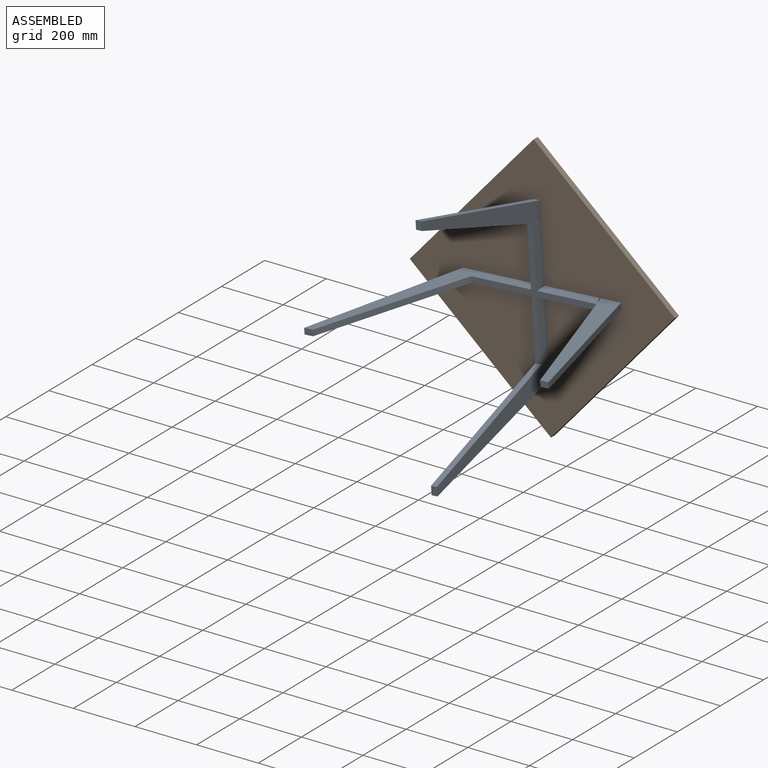
[diagram: assembled view]
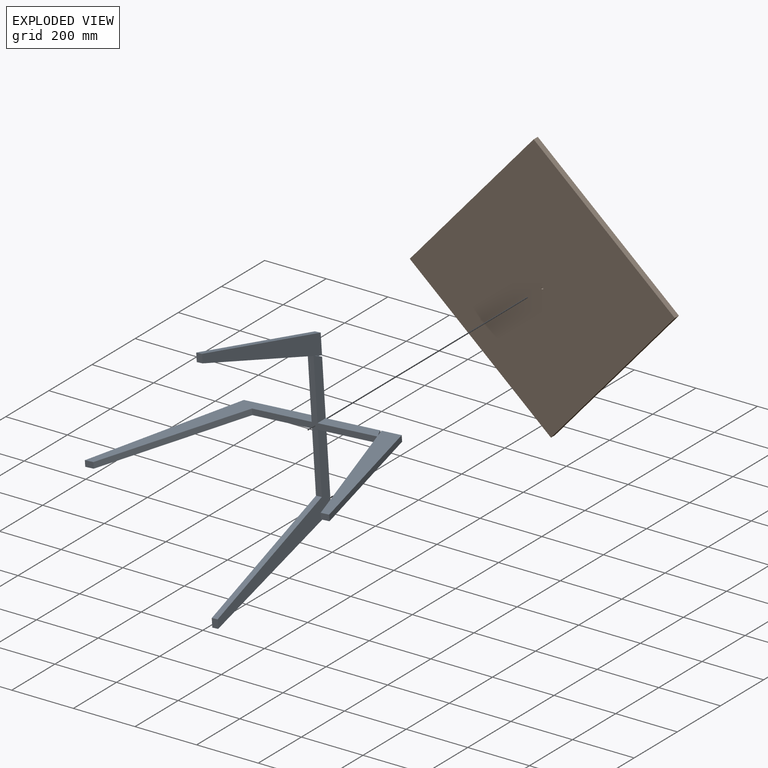
[diagram: exploded view]
GUIDED TOUR — MATED ASSEMBLY WITH SUBASSEMBLIES (Onshape document 58f809ebde07980fea0182a8, AutoMate assembly 58f809ebde07980fea0182a8_abc5318efa38fb2cbd86245c_4e44dbe5dcb8f5f51973194f_default)

This assembly has 7 component occurrences arranged in 2 top-level units: 1 individual components plus 1 subassembly (S0). The tour has two levels: first the top level, where each subassembly is treated as one rigid unit; then each subassembly is toured internally in its own section (nesting deeper than one subassembly level is flattened into its subassembly's section).

Components are labeled P0..P6 across the whole record; subassembly units are labeled S0..S0. A mate is a constraint between two units; its type names the relative motion it leaves free:
  PLANAR — leaves sliding in the plane through the listed point (normal = the listed direction) and rotation about that normal free,
  REVOLUTE — leaves rotation about the listed axis free (a hinge).
Axis/direction vectors are unit vectors and 'through' points are millimeter coordinates, both in the assembly's world frame.

TOP-LEVEL MATES (between units; each subassembly's internal mates are listed in its own section)
  1. REVOLUTE "Revolute 1": S0 <-> P1, axis (0.000, 1.000, 0.000) through (-940.12, -111.90, 1144.78) mm

TOP-LEVEL ASSEMBLY ORDER
  1. P1 — the base component [order verified]
  2. S0 [order verified]
Order-tag legend:
  [order verified] — this step's position reverses a verified removal order: the component was checked to insert without passing through the ones already placed.

Of the 7 component occurrences, 1 carries the full construction recipe — the FeatureScript program that regenerates the part's solid from scratch; the rest are supplied as boundary geometry only. Each toured unit is shown spotlighted twice — assembled, then exploded with a leader line back to its socket (green = recipe-attached component, orange = geometry-only, blue = subassembly unit; the rest desaturated gray).
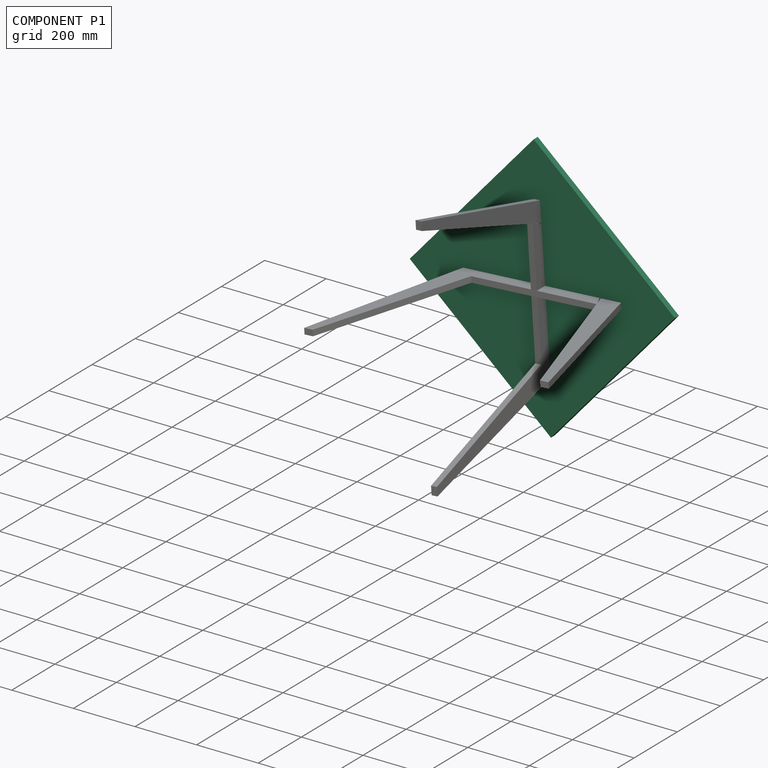
[diagram: component P1 — assembled]
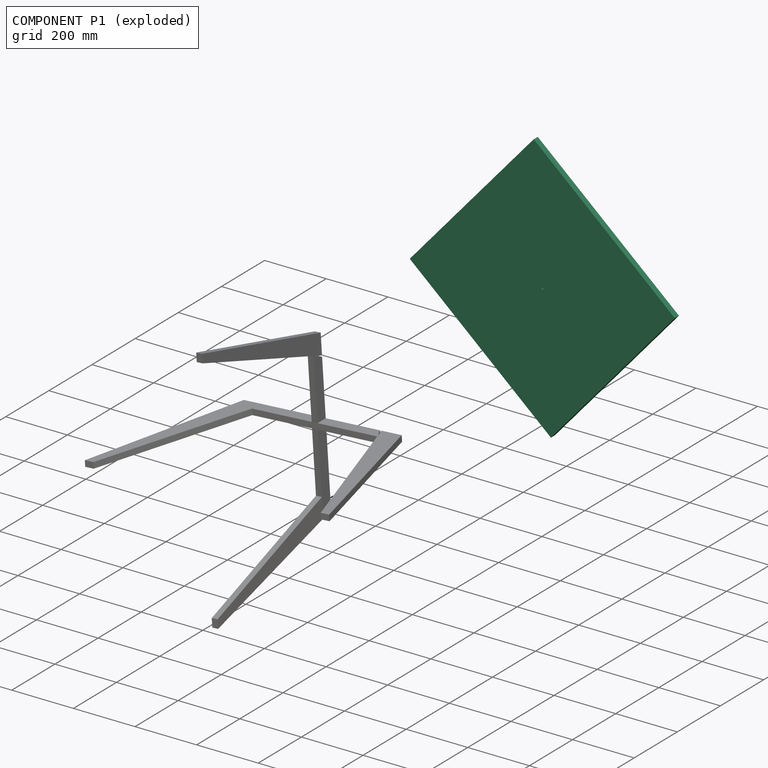
[diagram: component P1 — exploded]
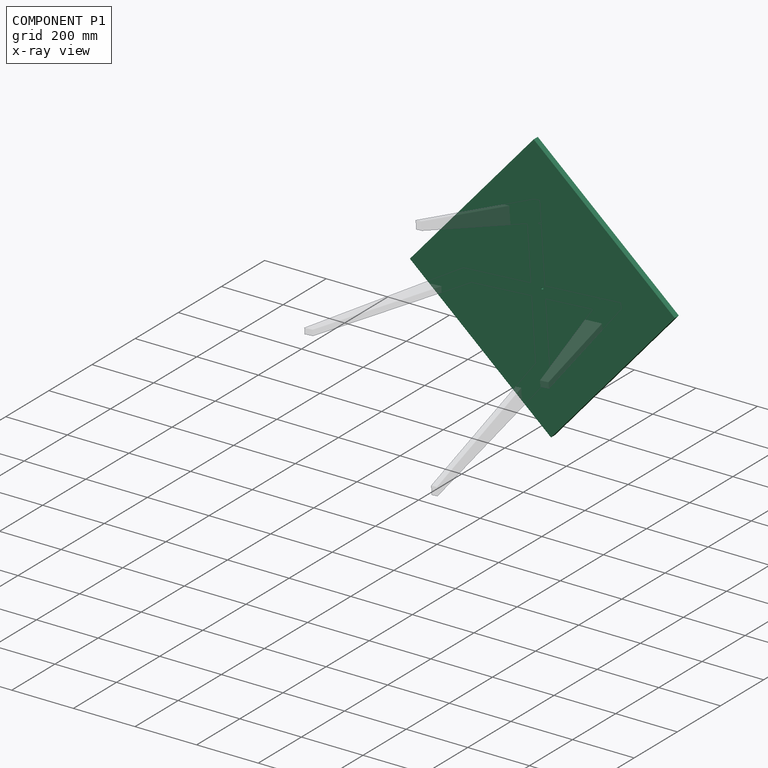
[diagram: component P1 — x-ray view]
COMPONENT P1 — recipe-attached (CADFS 00722363, mesh-verified: the recipe's output STEP matches this component's geometry to below the mesh-comparison resolution (tessellation chordal tolerance ~1.29 mm)).
Held by: REVOLUTE mate "Revolute 1" to P0.
Construction recipe (FeatureScript — the CAD program that rebuilds this solid; sketch coordinates are in the units given by the * unit suffixes, e.g. mm):

FeatureScript 1511;
import(path : "onshape/std/geometry.fs", version : "1511.0");
import(path : "onshape/std/common.fs", version : "1511.0");
const mm = millimeter;
const VERTEX = EntityType.VERTEX;
const EDGE = EntityType.EDGE;
const FACE = EntityType.FACE;
const BODY = EntityType.BODY;
function v(x, y){return vector(x, y);}
function OD(order){return orderDisambiguation(order);}
function OSD(set){return originalSetDisambiguation(set);}
function TD(topology){return topologyDisambiguation(topology);}
function TDD(query){return trueDependencyDisambiguation(query);}
function sQuery(a, b, c) {return sketchEntityQuery(a, b, c);}

annotation { "Feature Type Name" : "Feature", "Feature Type Description" : "" }
export const myFeature = defineFeature(function(context is Context, id is Id, definition is map)
    precondition{}
    {
        {
            var Q0;
            Q0=qCreatedBy(makeId("Front.planeOp"),FACE);
            var sketch = newSketch(context, id + "F0", { "sketchPlane" : qUnion([Q0])});
            skLineSegment(sketch, "E0.bottom", {"start": v(0, 0) * mm, "end": v(-609.6, 0) * mm});
            skLineSegment(sketch, "E0.top", {"start": v(0, 609.6) * mm, "end": v(-609.6, 609.6) * mm});
            skLineSegment(sketch, "E0.left", {"start": v(0, 0) * mm, "end": v(0, 609.6) * mm});
            skLineSegment(sketch, "E0.right", {"start": v(-609.6, 0) * mm, "end": v(-609.6, 609.6) * mm});
            skSolve(sketch);
        }
        {
            var Q0;
            Q0=makeQuery(id+"F0.imprint","IMPRINT",FACE,{"disambiguationData":[TD([[makeQuery(id+"F0.imprint","IMPRINT",EDGE,{"derivedFrom":sQuery(id+"F0.wireOp",EDGE,"E0.bottom")}),-1.0]])]});
            extrude(context, id + "F1", {"entities" : qUnion([Q0]), "depth" : 19.05 * mm, "offsetDistance" : 25.4 * mm});
        }
        {
            var Q0;
            Q0=makeQuery(id+"F1.opExtrude","CAP_FACE",FACE,{"disambiguationData":[OSD([sQuery(id+"F0.wireOp",EDGE,"E0.bottom"),sQuery(id+"F0.wireOp",EDGE,"E0.top"),sQuery(id+"F0.wireOp",EDGE,"E0.left"),sQuery(id+"F0.wireOp",EDGE,"E0.right")])],"isStart":false});
            var sketch = newSketch(context, id + "F2", { "sketchPlane" : qUnion([Q0])});
            skLineSegment(sketch, "E1", {"start": v(-609.6, 304.8) * mm, "end": v(-304.8, 304.8) * mm, "construction": true});
            skLineSegment(sketch, "E2", {"start": v(-304.8, 304.8) * mm, "end": v(-304.8, 609.6) * mm, "construction": true});
            skCircle(sketch, "E3", {"center": v(-304.8, 304.8) * mm, "radius": 3.17 * mm});
            skSolve(sketch);
        }
        {
            var Q0;
            Q0=qSketchRegion(id+"F2",true);
            extrude(context, id + "F3", {"entities" : qUnion([Q0]), "operationType" : NewBodyOperationType.REMOVE, "oppositeDirection" : true, "depth" : 25.4 * mm, "offsetDistance" : 25.4 * mm});
        }
    });
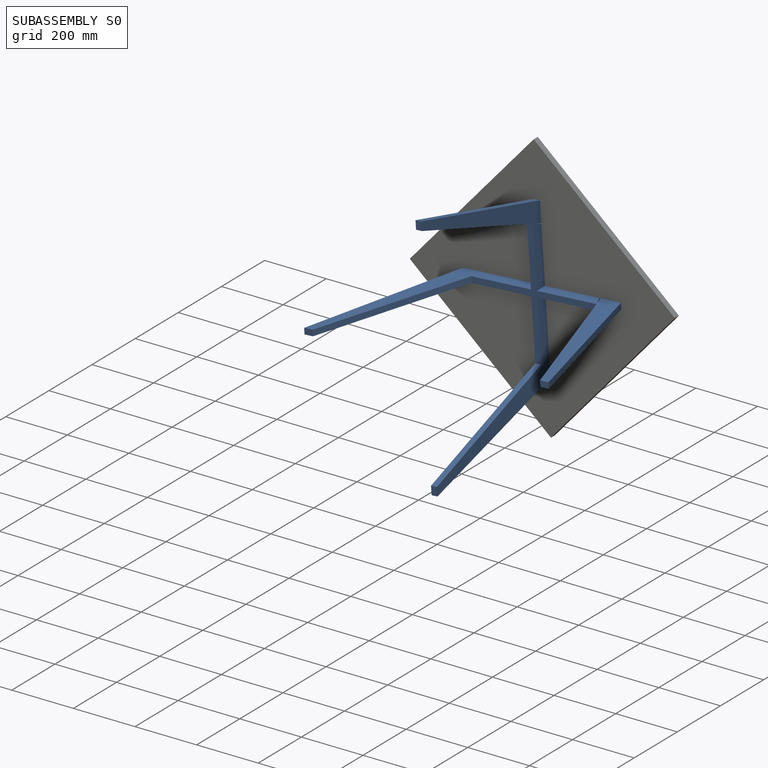
[diagram: subassembly S0 — assembled]
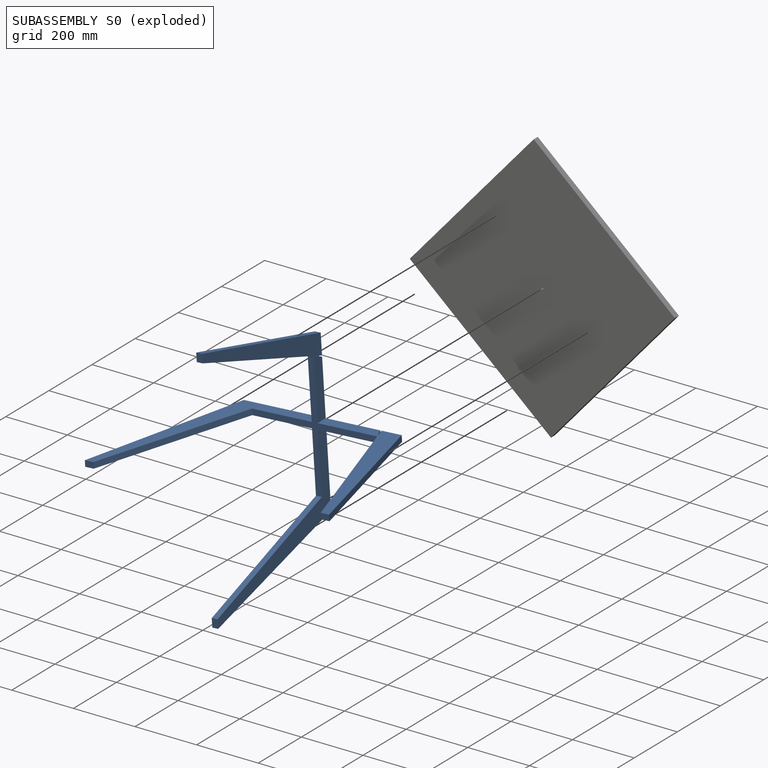
[diagram: subassembly S0 — exploded]
SUBASSEMBLY S0 — 6 components (P0, P2, P3, P4, P5, P6), of which 0 recipe-attached; toured below.
Held by: REVOLUTE mate "Revolute 1" to P1.
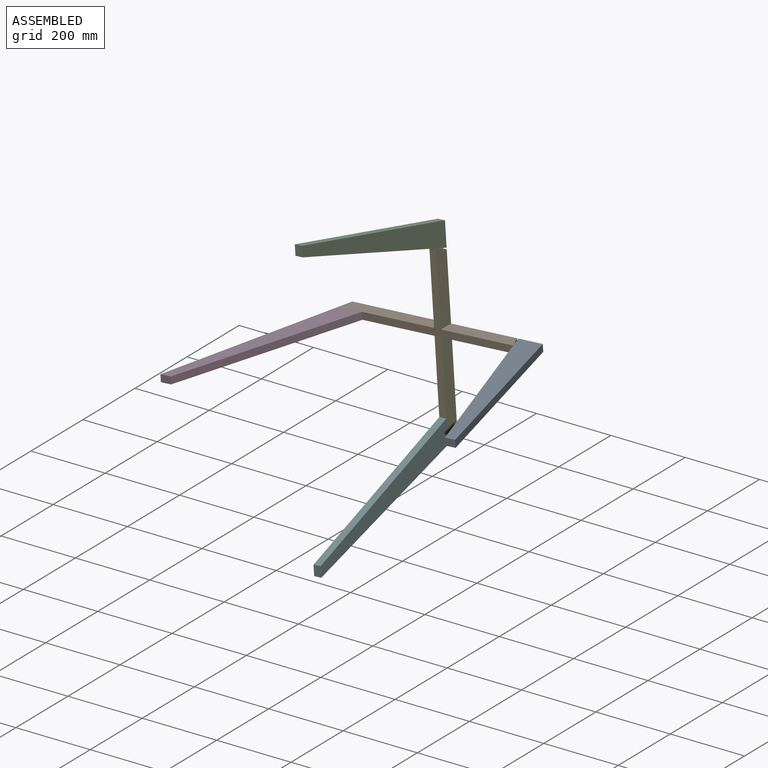
[diagram: subassembly S0 — assembled view]
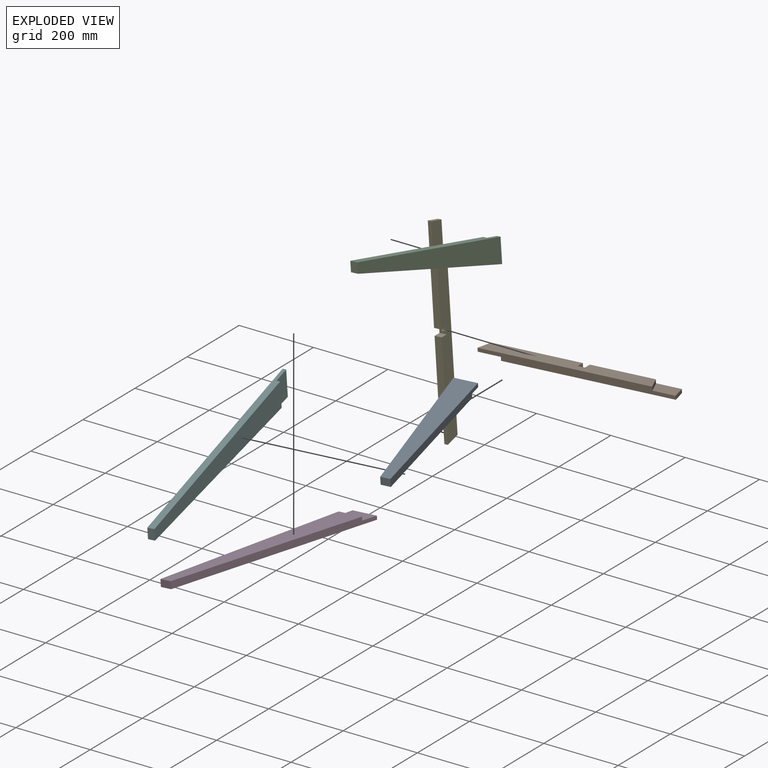
[diagram: subassembly S0 — exploded view]
SUBASSEMBLY S0 TOUR — 6 components, shown here in isolation at its own camera.

INTERNAL MATES
  1. PLANAR "Planar 15": P2 <-> P5, direction (-0.066, 0.000, 0.998) through (-974.33, -131.35, 1152.07) mm
  2. PLANAR "Planar 10": P4 <-> P2, direction (0.000, 1.000, 0.000) through (-1163.22, -111.90, 1125.30) mm
  3. PLANAR "Planar 7": P3 <-> P5, direction (-0.998, 0.000, -0.066) through (-955.22, -130.82, 1373.81) mm
  4. PLANAR "Planar 12": P4 <-> P2, direction (-0.965, 0.253, -0.064) through (-1268.80, -389.46, 1122.93) mm
  5. PLANAR "Planar 8": P3 <-> P5, direction (0.000, 1.000, 0.000) through (-950.10, -111.90, 1368.51) mm
  6. PLANAR "Planar 4": P0 <-> P2, direction (0.000, 1.000, 0.000) through (-717.02, -111.90, 1164.27) mm
  7. PLANAR "Planar 2": P5 <-> P6, direction (0.064, 0.253, -0.965) through (-918.15, -130.95, 883.95) mm
  8. PLANAR "Planar 1": P5 <-> P6, direction (-0.998, 0.000, -0.066) through (-925.08, -130.61, 916.67) mm
  9. PLANAR "Planar 3": P5 <-> P6, direction (0.000, 1.000, 0.000) through (-940.12, -111.90, 1144.78) mm
  10. PLANAR "Planar 9": P5 <-> P3, direction (-0.064, 0.253, 0.965) through (-962.09, -130.95, 1405.62) mm
  11. PLANAR "Planar 6": P0 <-> P2, direction (0.965, 0.253, 0.064) through (-611.44, -389.46, 1166.64) mm
  12. PLANAR "Planar 13": P2 <-> P5, direction (0.000, 1.000, 0.000) through (-940.12, -130.95, 1144.78) mm
  13. PLANAR "Planar 14": P5 <-> P2, direction (0.998, 0.000, 0.066) through (-928.40, -130.94, 1111.82) mm
  14. PLANAR "Planar 5": P0 <-> P2, direction (0.066, 0.000, -0.998) through (-711.09, -130.82, 1159.89) mm
  15. PLANAR "Planar 11": P2 <-> P4, direction (0.066, 0.000, -0.998) through (-1168.23, -130.61, 1129.74) mm
  16. PLANAR "Planar 14": P5 <-> P2, direction (0.998, 0.000, 0.066) through (-928.40, -130.94, 1111.82) mm
  17. PLANAR "Planar 15": P2 <-> P5, direction (-0.066, 0.000, 0.998) through (-974.33, -131.35, 1152.07) mm
  18. PLANAR "Planar 9": P5 <-> P3, direction (-0.064, 0.253, 0.965) through (-962.09, -130.95, 1405.62) mm
  19. PLANAR "Planar 4": P0 <-> P2, direction (0.000, 1.000, 0.000) through (-717.02, -111.90, 1164.27) mm
  20. PLANAR "Planar 3": P5 <-> P6, direction (0.000, 1.000, 0.000) through (-940.12, -111.90, 1144.78) mm
  21. PLANAR "Planar 5": P0 <-> P2, direction (0.066, 0.000, -0.998) through (-711.09, -130.82, 1159.89) mm
  22. PLANAR "Planar 10": P4 <-> P2, direction (0.000, 1.000, 0.000) through (-1163.22, -111.90, 1125.30) mm
  23. PLANAR "Planar 6": P0 <-> P2, direction (0.965, 0.253, 0.064) through (-611.44, -389.46, 1166.64) mm
  24. PLANAR "Planar 11": P2 <-> P4, direction (0.066, 0.000, -0.998) through (-1168.23, -130.61, 1129.74) mm
  25. PLANAR "Planar 2": P5 <-> P6, direction (0.064, 0.253, -0.965) through (-918.15, -130.95, 883.95) mm
  26. PLANAR "Planar 12": P4 <-> P2, direction (-0.965, 0.253, -0.064) through (-1268.80, -389.46, 1122.93) mm
  27. PLANAR "Planar 7": P3 <-> P5, direction (-0.998, 0.000, -0.066) through (-955.22, -130.82, 1373.81) mm
  28. PLANAR "Planar 8": P3 <-> P5, direction (0.000, 1.000, 0.000) through (-950.10, -111.90, 1368.51) mm
  29. PLANAR "Planar 13": P2 <-> P5, direction (0.000, 1.000, 0.000) through (-940.12, -130.95, 1144.78) mm
  30. PLANAR "Planar 1": P5 <-> P6, direction (-0.998, 0.000, -0.066) through (-925.08, -130.61, 916.67) mm

ASSEMBLY ORDER (within the subassembly)
  1. P5 — the base component [order verified]
  2. P3 [order verified]
  3. P0 [order verified]
  4. P2 [order verified]
  5. P6 [order verified]
  6. P4 [order verified]
Order-tag legend:
  [order verified] — this step's position reverses a verified removal order: the component was checked to insert without passing through the ones already placed.
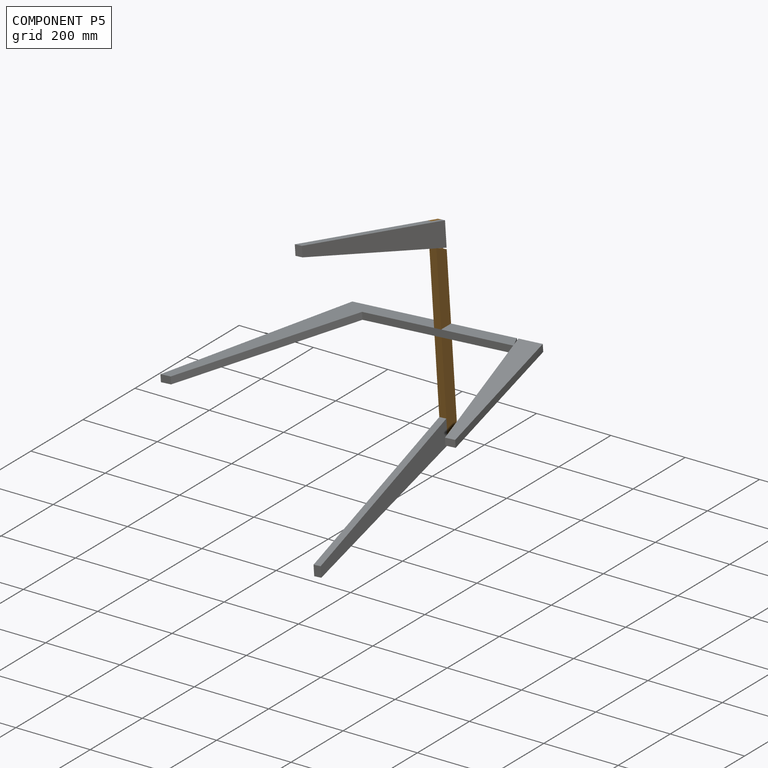
[diagram: component P5 — assembled]
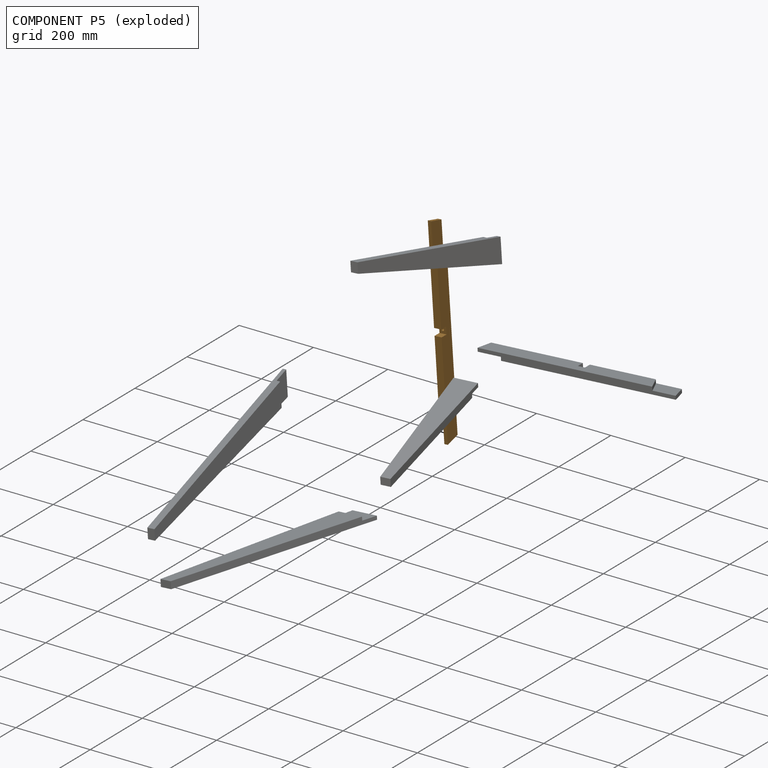
[diagram: component P5 — exploded]
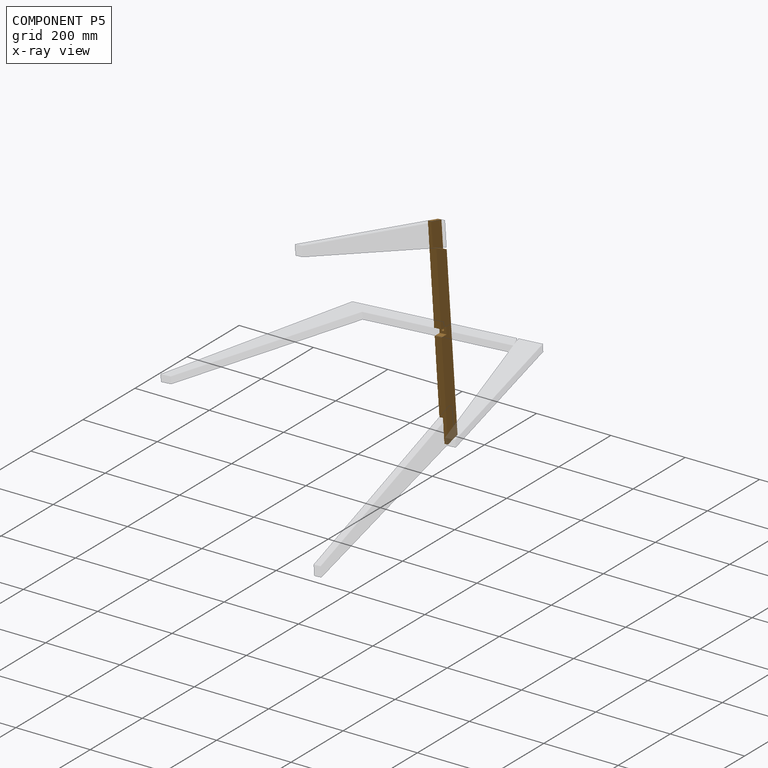
[diagram: component P5 — x-ray view]
COMPONENT P5 — geometry summary (no construction recipe available for this part):
  bounding box: 533.4 x 38.1 x 19.1 mm
  B-rep topology: 1 solid, 15 faces, 80 edges
  volume: 324515 mm^3 (84% of its bounding box)
  symmetry: 2-fold rotationally symmetric about the y axis
Held by: PLANAR mate "Planar 15" to P2; PLANAR mate "Planar 7" to P3; PLANAR mate "Planar 8" to P3; PLANAR mate "Planar 2" to P6; PLANAR mate "Planar 1" to P6; PLANAR mate "Planar 3" to P6; PLANAR mate "Planar 9" to P3; PLANAR mate "Planar 13" to P2; PLANAR mate "Planar 14" to P2; PLANAR mate "Planar 14" to P2; PLANAR mate "Planar 15" to P2; PLANAR mate "Planar 9" to P3; PLANAR mate "Planar 3" to P6; PLANAR mate "Planar 2" to P6; PLANAR mate "Planar 7" to P3; PLANAR mate "Planar 8" to P3; PLANAR mate "Planar 13" to P2; PLANAR mate "Planar 1" to P6.
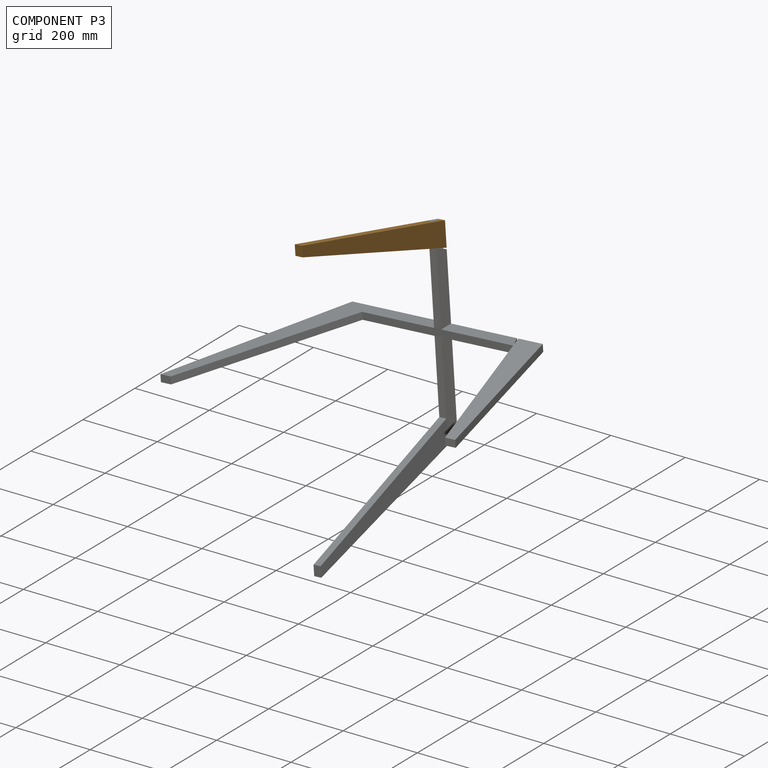
[diagram: component P3 — assembled]
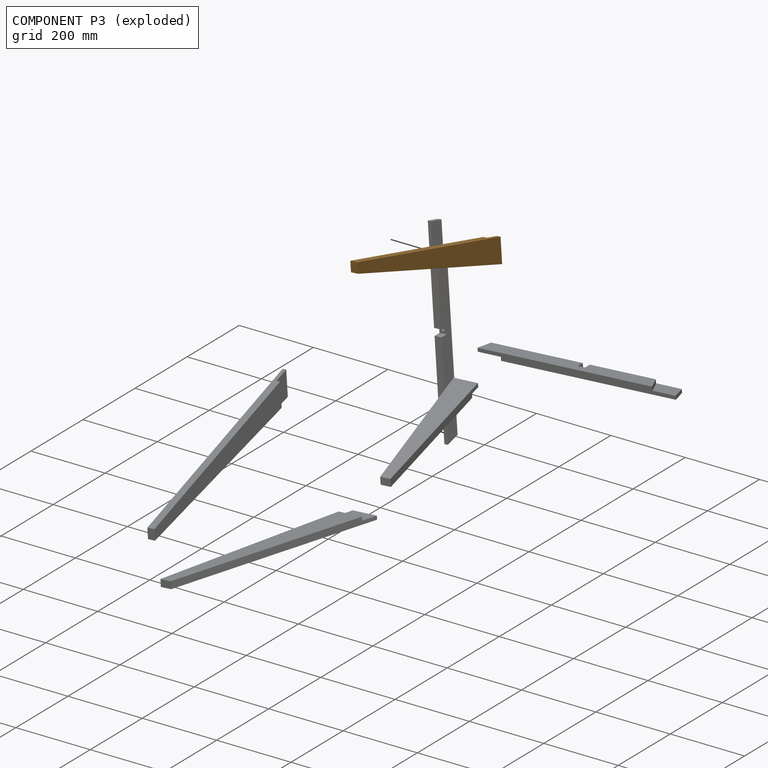
[diagram: component P3 — exploded]
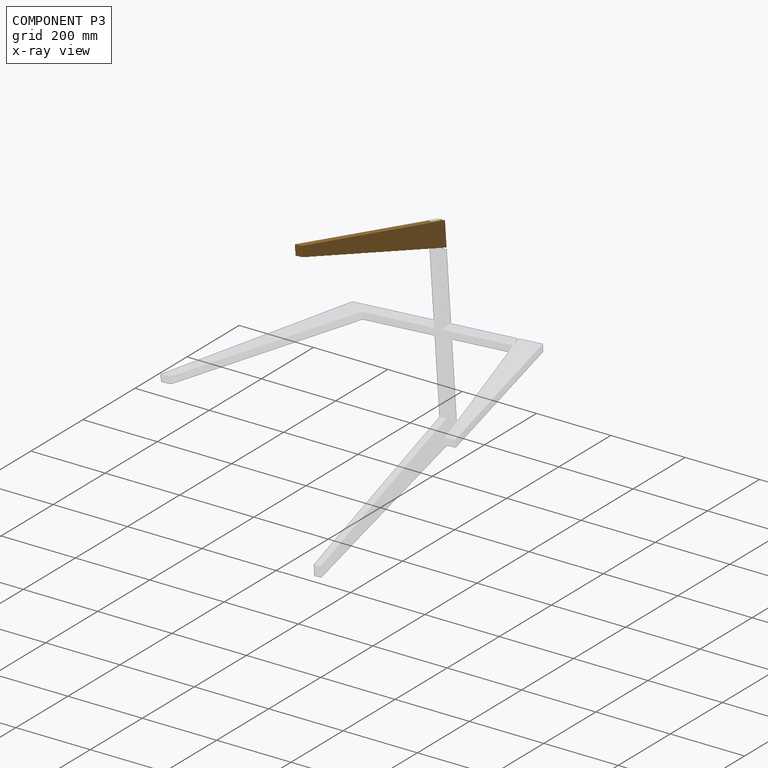
[diagram: component P3 — x-ray view]
COMPONENT P3 — geometry summary (no construction recipe available for this part):
  bounding box: 571.5 x 63.5 x 19.1 mm
  B-rep topology: 1 solid, 8 faces, 36 edges
  volume: 453087 mm^3 (66% of its bounding box)
Held by: PLANAR mate "Planar 7" to P5; PLANAR mate "Planar 8" to P5; PLANAR mate "Planar 9" to P5; PLANAR mate "Planar 9" to P5; PLANAR mate "Planar 7" to P5; PLANAR mate "Planar 8" to P5.
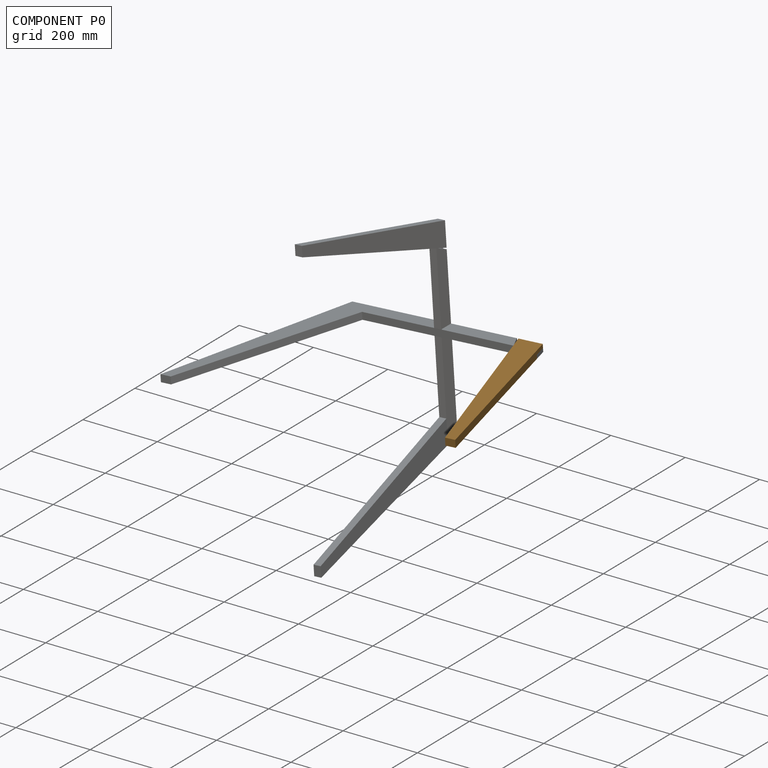
[diagram: component P0 — assembled]
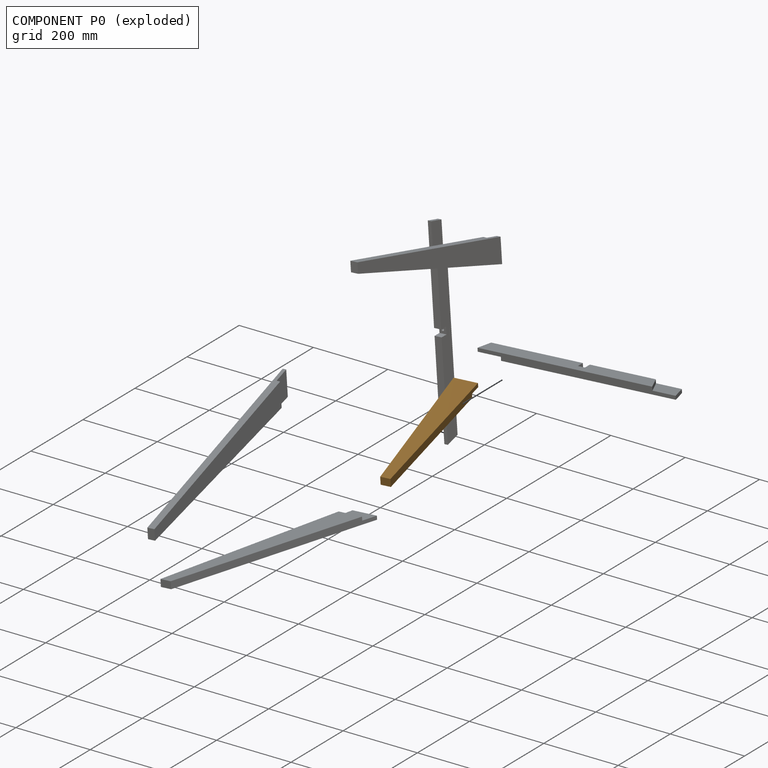
[diagram: component P0 — exploded]
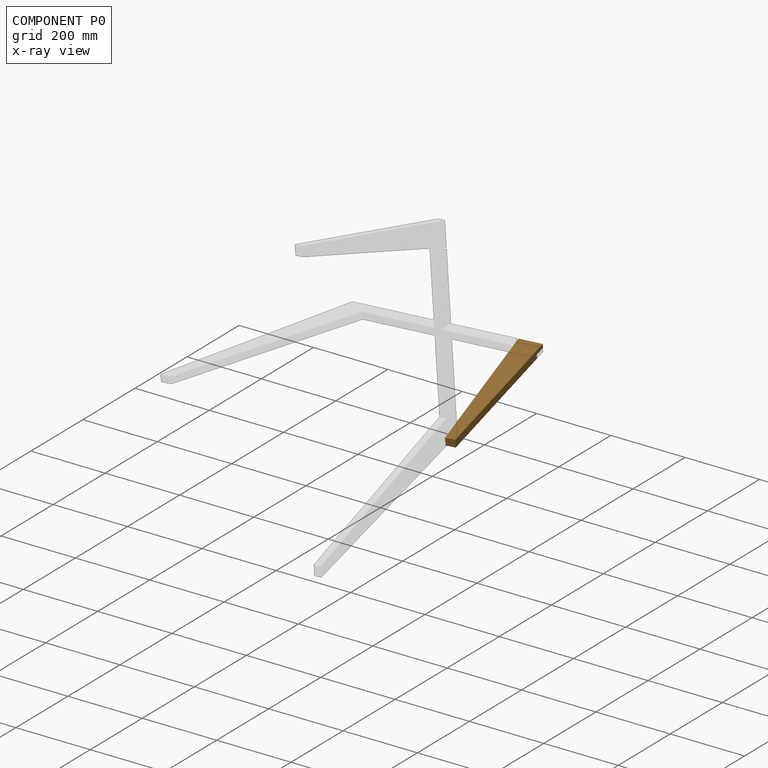
[diagram: component P0 — x-ray view]
COMPONENT P0 — geometry summary (no construction recipe available for this part):
  bounding box: 571.5 x 63.5 x 19.1 mm
  B-rep topology: 1 solid, 8 faces, 36 edges
  volume: 453087 mm^3 (66% of its bounding box)
Held by: PLANAR mate "Planar 4" to P2; PLANAR mate "Planar 6" to P2; PLANAR mate "Planar 5" to P2; PLANAR mate "Planar 4" to P2; PLANAR mate "Planar 5" to P2; PLANAR mate "Planar 6" to P2.
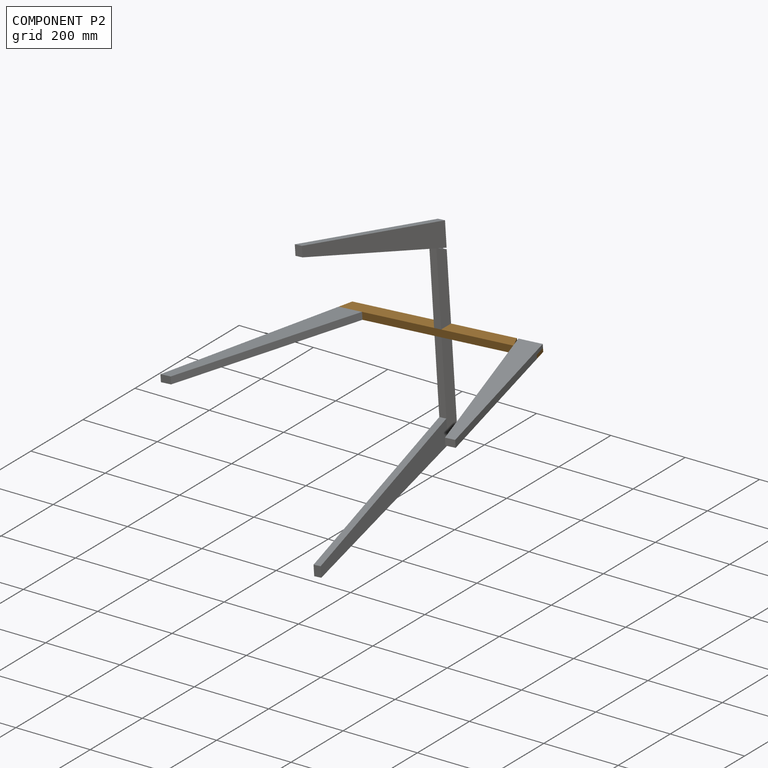
[diagram: component P2 — assembled]
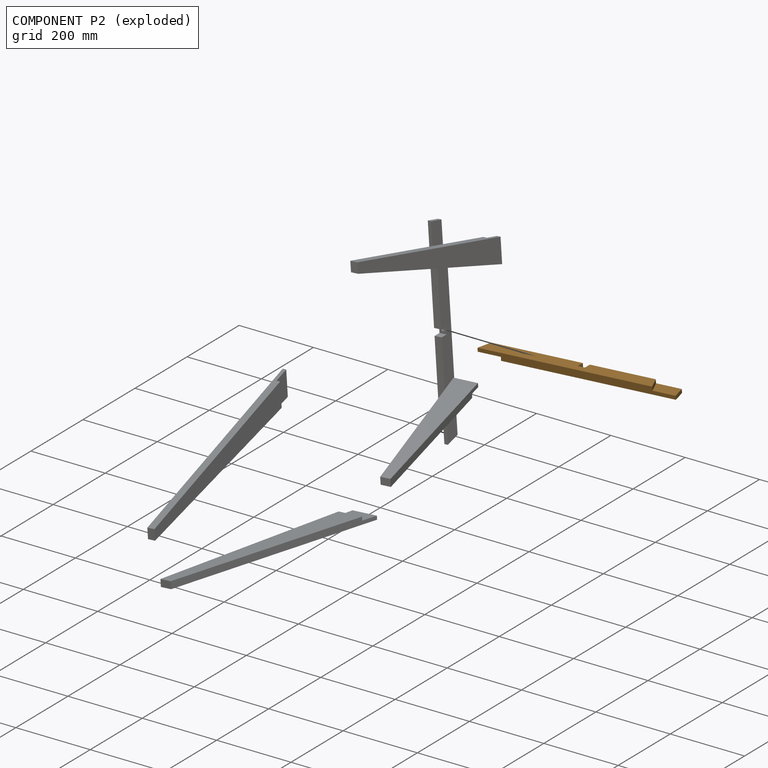
[diagram: component P2 — exploded]
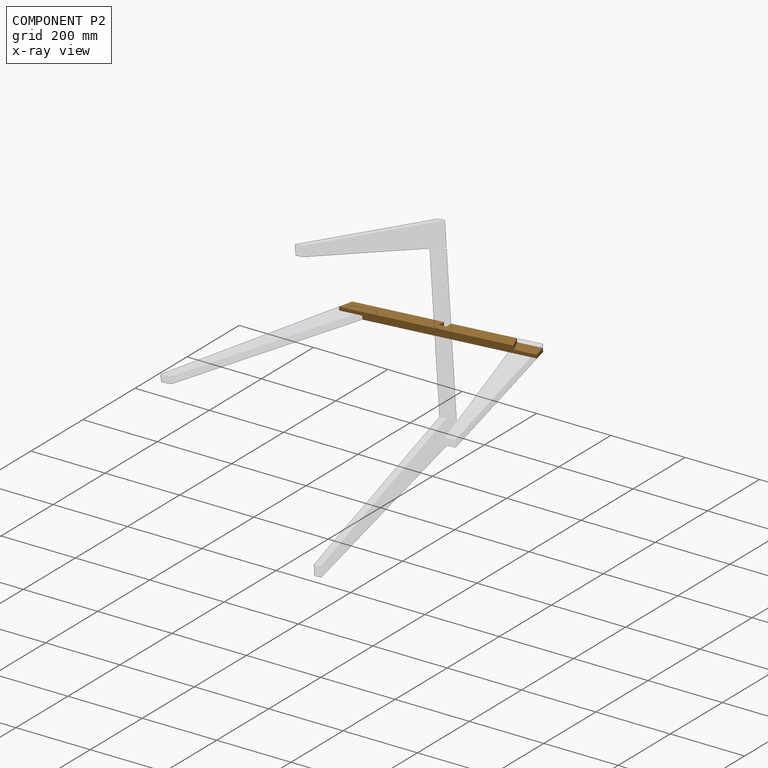
[diagram: component P2 — x-ray view]
COMPONENT P2 — geometry summary (no construction recipe available for this part):
  bounding box: 533.4 x 38.1 x 19.1 mm
  B-rep topology: 1 solid, 14 faces, 72 edges
  volume: 325118 mm^3 (84% of its bounding box)
  symmetry: 2-fold rotationally symmetric about the y axis
Held by: PLANAR mate "Planar 15" to P5; PLANAR mate "Planar 10" to P4; PLANAR mate "Planar 12" to P4; PLANAR mate "Planar 4" to P0; PLANAR mate "Planar 6" to P0; PLANAR mate "Planar 13" to P5; PLANAR mate "Planar 14" to P5; PLANAR mate "Planar 5" to P0; PLANAR mate "Planar 11" to P4; PLANAR mate "Planar 14" to P5; PLANAR mate "Planar 15" to P5; PLANAR mate "Planar 4" to P0; PLANAR mate "Planar 5" to P0; PLANAR mate "Planar 10" to P4; PLANAR mate "Planar 6" to P0; PLANAR mate "Planar 11" to P4; PLANAR mate "Planar 12" to P4; PLANAR mate "Planar 13" to P5.
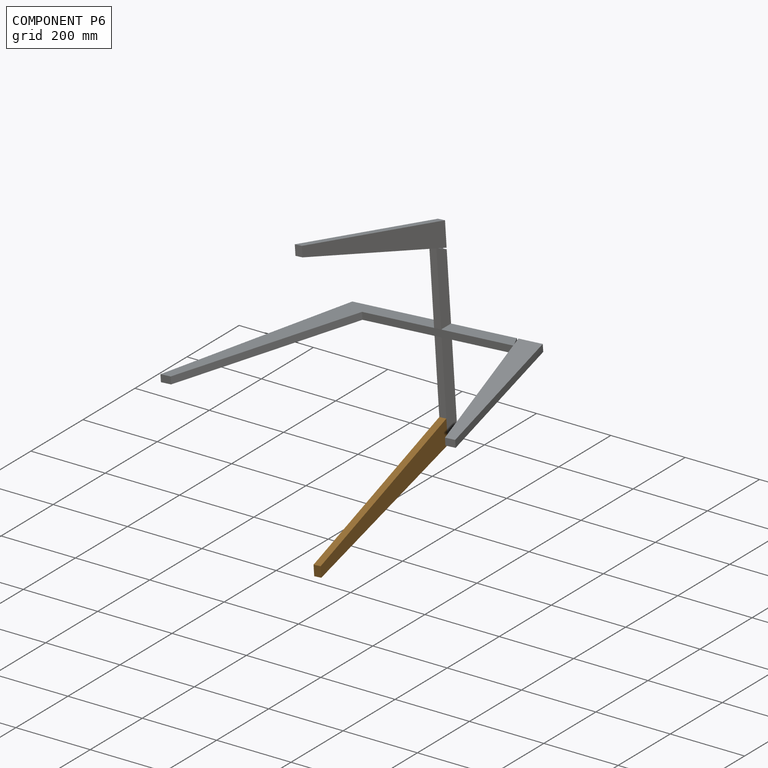
[diagram: component P6 — assembled]
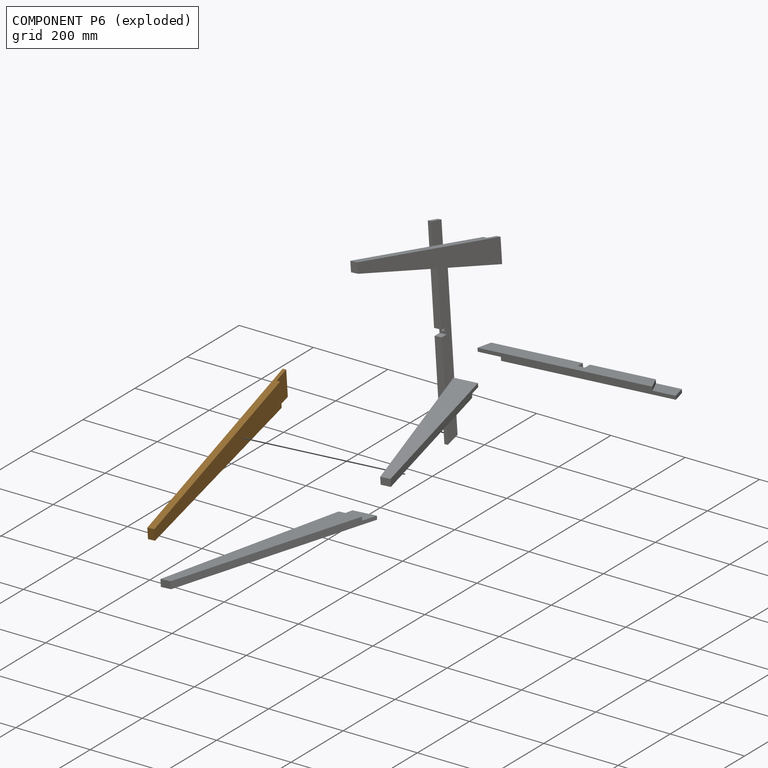
[diagram: component P6 — exploded]
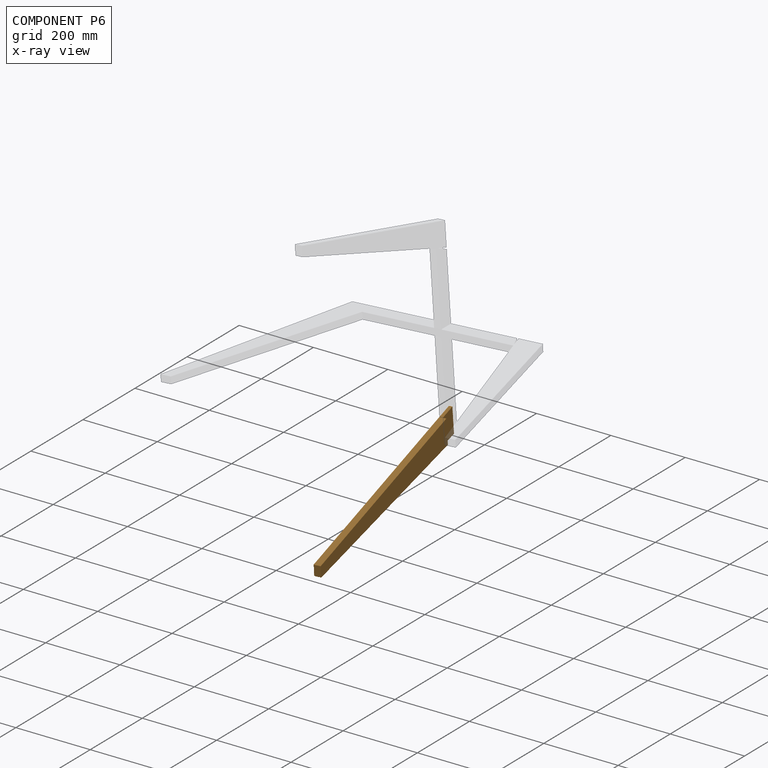
[diagram: component P6 — x-ray view]
COMPONENT P6 — geometry summary (no construction recipe available for this part):
  bounding box: 571.5 x 63.5 x 19.1 mm
  B-rep topology: 1 solid, 8 faces, 36 edges
  volume: 453087 mm^3 (66% of its bounding box)
Held by: PLANAR mate "Planar 2" to P5; PLANAR mate "Planar 1" to P5; PLANAR mate "Planar 3" to P5; PLANAR mate "Planar 3" to P5; PLANAR mate "Planar 2" to P5; PLANAR mate "Planar 1" to P5.
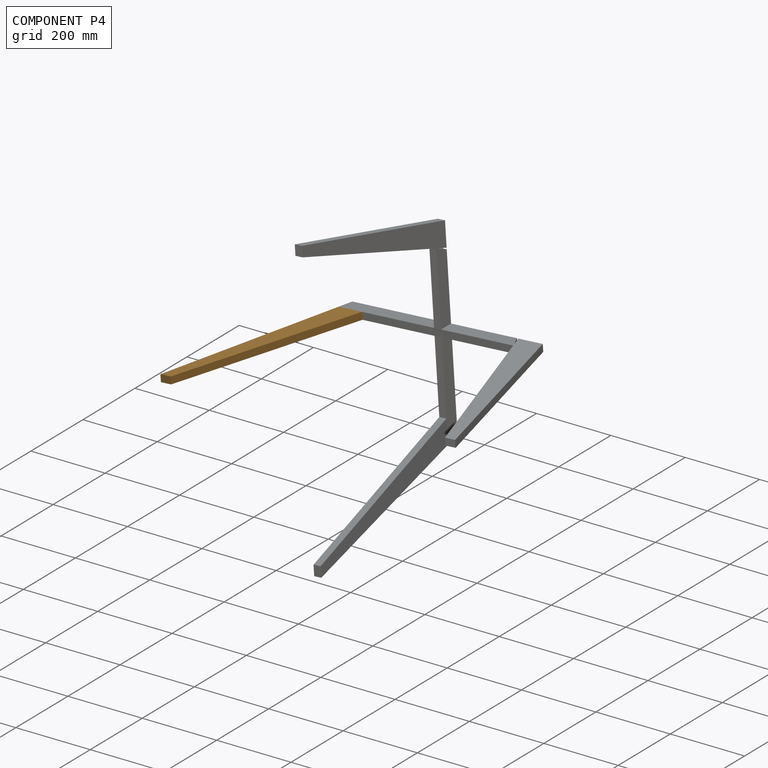
[diagram: component P4 — assembled]
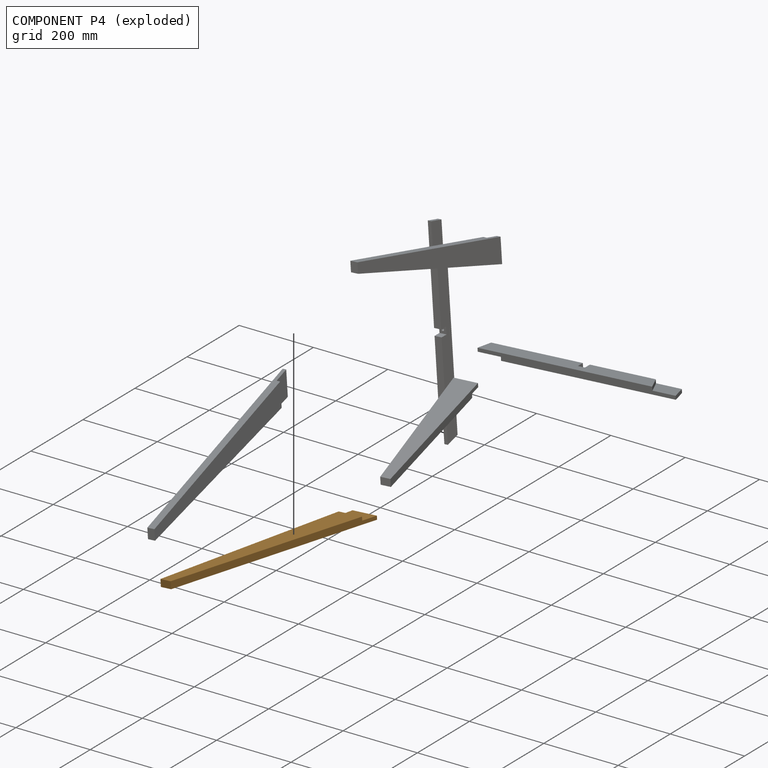
[diagram: component P4 — exploded]
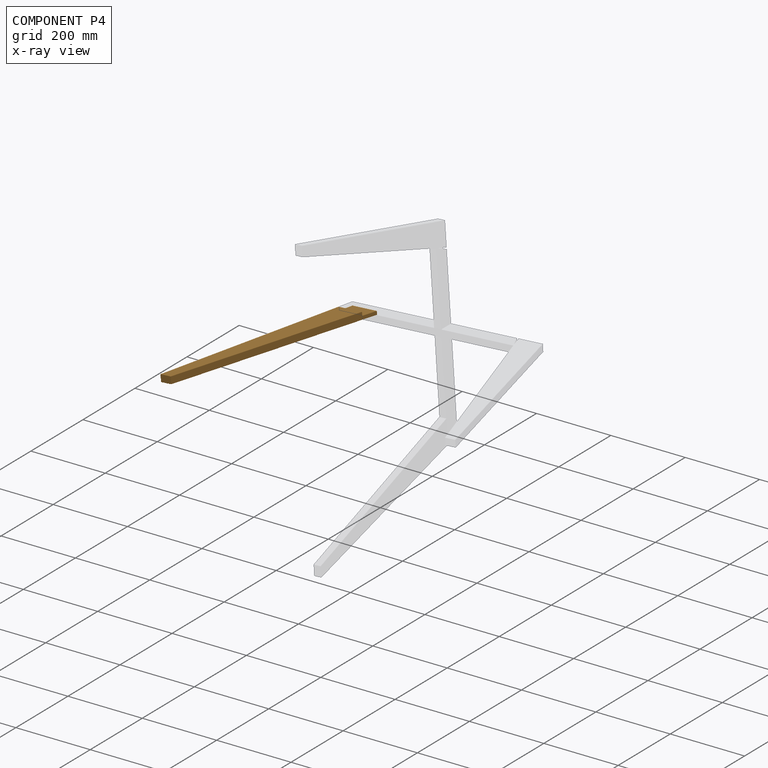
[diagram: component P4 — x-ray view]
COMPONENT P4 — geometry summary (no construction recipe available for this part):
  bounding box: 571.5 x 63.5 x 19.1 mm
  B-rep topology: 1 solid, 8 faces, 36 edges
  volume: 453087 mm^3 (66% of its bounding box)
Held by: PLANAR mate "Planar 10" to P2; PLANAR mate "Planar 12" to P2; PLANAR mate "Planar 11" to P2; PLANAR mate "Planar 10" to P2; PLANAR mate "Planar 11" to P2; PLANAR mate "Planar 12" to P2.
PROVENANCE & LICENSES
Assembly (occurrences, transforms, mates, per-part STEP geometry): AutoMate dataset, Zenodo record 7776208, CC0.
Construction recipes: CADFS (HuggingFace VladPyatov/CADFS, CC-BY-4.0, layered over the ABC dataset), FeatureScript reconstruction programs keyed by ABC model id.
Join: ABC meta listings map ABC model id -> Onshape documentId; within a shared document, parts are matched by geometric signature (bounding-box dims + volume at 0.1% relative tolerance, exact B-rep face/solid counts).
Verification: 1 of this assembly's 7 components carries a recipe attachment, and every attachment is mesh-verified: the CADFS STEP and the AutoMate member STEP were compared as meshes in their shared local frame (symmetric sampled-point-to-mesh distance); worst across the 1 attachment: below the mesh-comparison resolution (tessellation chordal tolerance ~1.29 mm) on a 862 mm part.
Renders: orthographic iso camera (az 35 / el 25); the floor grid conveys scale (grid pitch printed in each image; no ruler). In the exploded view each component is displaced by its stored offset vector: the offsets alone carry the explosion direction (mate normal/axis signs are not orientation cues and do not encode it), and separation distances are assigned per mate-chain, not proportionally to assembly-order depth.
